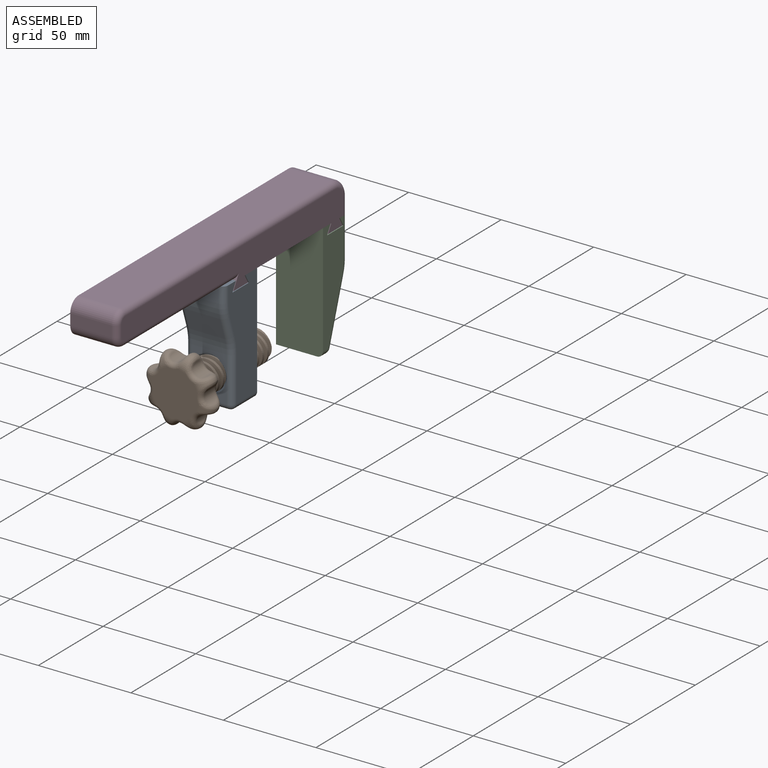
[diagram: assembled view]
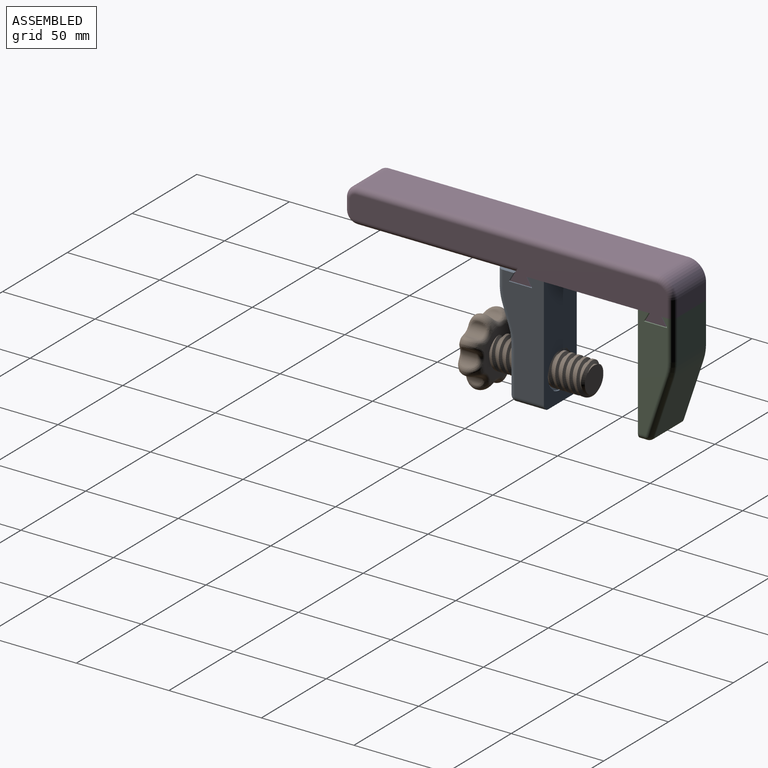
[diagram: assembled view, second angle]
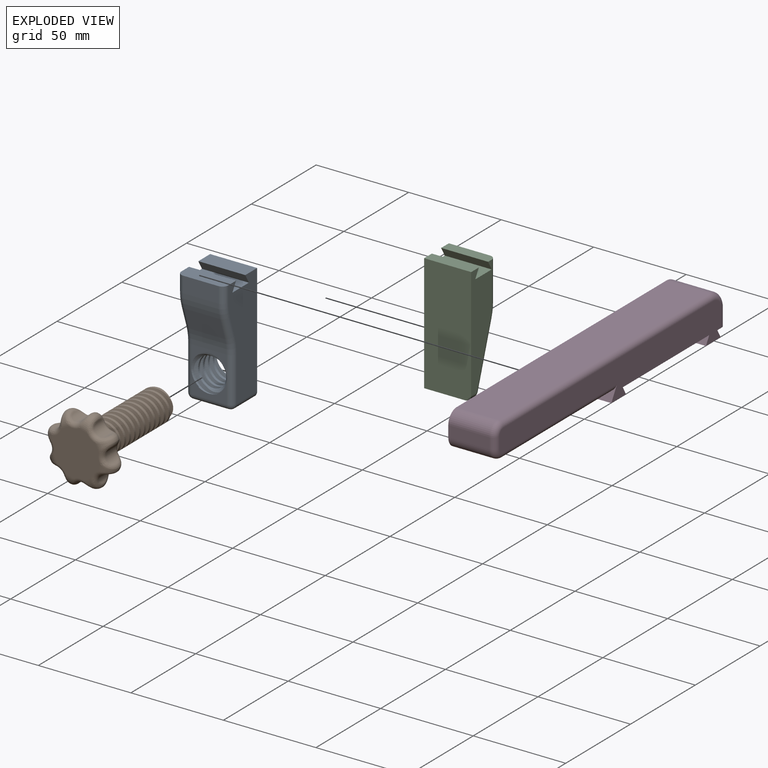
[diagram: exploded view]
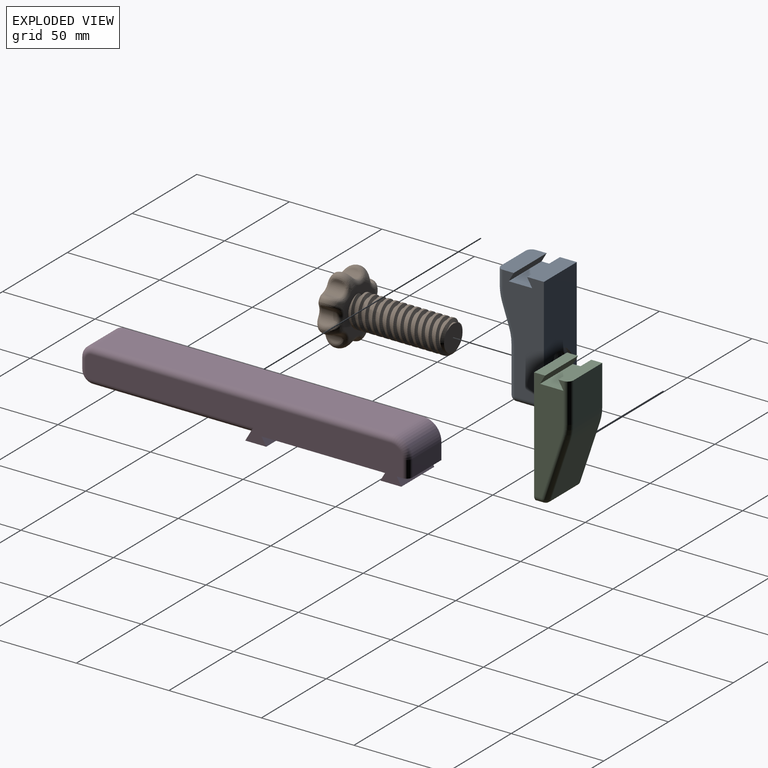
[diagram: exploded view, second angle]
ASSEMBLY  parts=4 mates=3
PART A: 42 faces, bbox 25.4x26.9x63.5 mm
  f0: plane 19.06x10.53mm, normal (0,-1,0), area 75.4mm2, adj f5,f16,f17,f18,f26,f27,f30,f37
  f1: plane 63.51x25.41mm, normal (0,1,0), area 1311.3mm2, adj f8,f9,f14,f15,f16,f17,f18,f19
  f2: plane 19.05x8.58mm, normal (0,-1,0), area 163.4mm2, adj f3,f13,f34,f41
  f3: cylinder r=25.4mm len=19.05mm, axis (-1,0,0), area 155.7mm2, adj f2,f4,f33,f40
  f4: plane 19.05x11.23mm, normal (0,-0.95,-0.32), area 225.5mm2, adj f3,f5,f32,f39
  f5: cylinder r=25.4mm len=19.05mm, axis (-1,0,0), area 155.7mm2, adj f0,f4,f31,f38
  f6: plane 19.06x11.47mm, normal (0,-1,0), area 93.4mm2, adj f7,f19,f20,f21,f26,f27,f30,f37
  f7: cylinder r=3.17mm len=19.05mm, axis (-1,0,0), area 95mm2, adj f6,f8,f29,f36
  f8: plane 19.05x15.88mm, normal (0,0,-1), area 302.4mm2, adj f1,f7,f28,f35
  f9: plane 25.4x9.1mm, normal (0,0,1), area 231.1mm2, adj f1,f10,f14,f15
  f10: plane 25.4x4.76mm, normal (0,-0.87,-0.5), area 139.7mm2, adj f9,f11,f14,f15
  f11: plane 25.4x12.7mm, normal (0,0,1), area 322.6mm2, adj f10,f12,f14,f15
  f12: plane 25.4x4.76mm, normal (0,0.87,-0.5), area 139.7mm2, adj f11,f13,f14,f15
  f13: plane 25.4x9.1mm, normal (0,0,1), area 226.8mm2, adj f2,f12,f14,f15,f34,f41
  f14: plane 60.33x22.23mm, normal (1,0,0), area 1048.6mm2, adj f1,f9,f10,f11,f12,f13,f35,f37
  f15: plane 60.33x22.23mm, normal (-1,0,0), area 1048.6mm2, adj f1,f9,f10,f11,f12,f13,f28,f30
  f16: bspline ~20.51x19.84mm, area 262mm2, adj f0,f1,f17,f23,f24,f26
  f17: cylinder r=9.92mm len=19.84mm, axis (0,-1,0), area 216.6mm2, adj f0,f1,f16,f18
  f18: bspline ~20.51x19.84mm, area 261.7mm2, adj f0,f1,f17,f22,f25,f27
  f19: bspline ~20.51x19.84mm, area 262mm2, adj f1,f6,f20,f22,f25,f27
  f20: cylinder r=9.92mm len=19.84mm, axis (0,-1,0), area 216.6mm2, adj f1,f6,f19,f21
  f21: bspline ~20.51x19.84mm, area 261.7mm2, adj f1,f6,f20,f23,f24,f26
  f22: cylinder r=8.02mm len=16.03mm, axis (0,1,0), area 146.1mm2, adj f18,f19,f25,f27
  f23: cylinder r=8.02mm len=16.03mm, axis (0,1,0), area 146.1mm2, adj f16,f21,f24,f26
  f24: cone r=8.02mm half-angle=45deg, axis (0,1,0), area 30mm2, adj f1,f16,f21,f23
  f25: cone r=8.02mm half-angle=45deg, axis (0,1,0), area 30mm2, adj f1,f18,f19,f22
  f26: cone r=9.6mm half-angle=45deg, axis (0,-1,0), area 30mm2, adj f0,f6,f16,f21,f23,f37
  f27: cone r=9.6mm half-angle=45deg, axis (0,-1,0), area 30mm2, adj f0,f6,f18,f19,f22,f30
  f28: cylinder r=3.17mm len=15.88mm, axis (0,1,0), area 79.2mm2, adj f1,f8,f15,f29
  f29: sphere r=3.17mm, area 15.8mm2, adj f7,f28,f30
  f30: cylinder r=3.17mm len=24.45mm, axis (0,0,-1), area 122mm2, adj f0,f6,f15,f27,f29,f31
  f31: torus R=28.57mm, axis (1,0,0), area 42.6mm2, adj f5,f15,f30,f32
  f32: cylinder r=3.17mm len=12.23mm, axis (0,0.32,-0.95), area 59mm2, adj f4,f15,f31,f33
  f33: torus R=22.23mm, axis (1,0,0), area 38.9mm2, adj f3,f15,f32,f34
  f34: cylinder r=3.17mm len=8.58mm, axis (0,0,-1), area 42.8mm2, adj f2,f13,f15,f33
  f35: cylinder r=3.17mm len=15.88mm, axis (0,-1,0), area 79.2mm2, adj f1,f8,f14,f36
  f36: sphere r=3.17mm, area 15.8mm2, adj f7,f35,f37
  f37: cylinder r=3.17mm len=24.45mm, axis (0,0,1), area 122mm2, adj f0,f6,f14,f26,f36,f38
  f38: torus R=28.57mm, axis (1,0,0), area 42.6mm2, adj f5,f14,f37,f39
  f39: cylinder r=3.17mm len=12.23mm, axis (0,-0.32,0.95), area 59mm2, adj f4,f14,f38,f40
  f40: torus R=22.23mm, axis (1,0,0), area 38.9mm2, adj f3,f14,f39,f41
  f41: cylinder r=3.17mm len=8.58mm, axis (0,0,1), area 42.8mm2, adj f2,f13,f14,f40
PART B: 61 faces, bbox 38.1x64.7x38.1 mm
  f0: torus R=12.7mm, axis (0,1,0), area 30mm2, adj f18,f20,f30,f35
  f1: torus R=12.7mm, axis (0,1,0), area 30mm2, adj f18,f20,f34,f39
  f2: torus R=12.7mm, axis (0,1,0), area 30mm2, adj f18,f20,f38,f43
  f3: torus R=12.7mm, axis (0,1,0), area 30mm2, adj f18,f20,f42,f46
  f4: torus R=12.7mm, axis (0,1,0), area 30mm2, adj f18,f20,f31,f59
  f5: torus R=12.7mm, axis (0,1,0), area 30mm2, adj f18,f20,f47,f50
  f6: torus R=12.7mm, axis (0,1,0), area 30mm2, adj f18,f20,f51,f54
  f7: bspline ~52.9x17.46mm, area 644.8mm2, adj f8,f14,f15,f17,f18
  f8: cylinder r=8.73mm len=49.69mm, axis (0,1,0), area 433.6mm2, adj f7,f9,f17,f18
  f9: bspline ~52.9x17.46mm, area 644.5mm2, adj f8,f13,f15,f17,f18
  f10: bspline ~52.9x17.46mm, area 644.8mm2, adj f11,f13,f15,f16,f18
  f11: cylinder r=8.73mm len=49.69mm, axis (0,1,0), area 433.6mm2, adj f10,f12,f16,f18
  f12: bspline ~52.9x17.46mm, area 644.5mm2, adj f11,f14,f15,f16,f18
  f13: cylinder r=6.83mm len=50.8mm, axis (0,-1,0), area 478.9mm2, adj f9,f10,f15,f18
  f14: cylinder r=6.83mm len=50.8mm, axis (0,-1,0), area 478.9mm2, adj f7,f12,f15,f18
  f15: plane 14.29x14.18mm, normal (0,1,0), area 154.9mm2, adj f7,f9,f10,f12,f13,f14,f16,f17
  f16: cone r=7.14mm half-angle=55deg, axis (0,-1,0), area 22.8mm2, adj f10,f11,f12,f15
  f17: cone r=7.14mm half-angle=55deg, axis (0,-1,0), area 22.8mm2, adj f7,f8,f9,f15
  f18: plane 25.02x25.02mm, normal (0,1,0), area 291.7mm2, adj f0,f1,f2,f3,f4,f5,f6,f7
  f19: torus R=12.7mm, axis (0,1,0), area 30mm2, adj f18,f20,f55,f58
  f20: plane 24.84x24.84mm, normal (0,-1,0), area 484.1mm2, adj f0,f1,f2,f3,f4,f5,f6,f19
  f21: cylinder r=4.76mm len=8.25mm, axis (0,-1,0), area 69.7mm2, adj f57,f58,f59,f60
  f22: cylinder r=4.76mm len=7.94mm, axis (0,-1,0), area 69.7mm2, adj f53,f54,f55,f56
  f23: cylinder r=4.76mm len=8.25mm, axis (0,-1,0), area 69.7mm2, adj f49,f50,f51,f52
  f24: cylinder r=4.76mm len=7.94mm, axis (0,-1,0), area 69.7mm2, adj f45,f46,f47,f48
  f25: cylinder r=4.76mm len=8.25mm, axis (0,-1,0), area 69.7mm2, adj f41,f42,f43,f44
  f26: cylinder r=4.76mm len=7.94mm, axis (0,-1,0), area 69.7mm2, adj f37,f38,f39,f40
  f27: cylinder r=4.76mm len=8.26mm, axis (0,-1,0), area 69.7mm2, adj f33,f34,f35,f36
  f28: cylinder r=4.76mm len=7.94mm, axis (0,-1,0), area 69.7mm2, adj f29,f30,f31,f32
  f29: torus R=7.14mm, axis (0,1,0), area 16mm2, adj f20,f28,f30,f31
  f30: bspline ~12.92x7.54mm, area 54.9mm2, adj f0,f28,f29,f32
  f31: bspline ~12.88x7.4mm, area 54.9mm2, adj f4,f28,f29,f32
  f32: torus R=7.14mm, axis (0,1,0), area 16mm2, adj f18,f28,f30,f31
  f33: torus R=7.14mm, axis (0,1,0), area 16mm2, adj f20,f27,f34,f35
  f34: bspline ~12.7x5.43mm, area 55mm2, adj f1,f27,f33,f36
  f35: bspline ~12.9x6.37mm, area 54.9mm2, adj f0,f27,f33,f36
  f36: torus R=7.14mm, axis (0,1,0), area 16mm2, adj f18,f27,f34,f35
  f37: torus R=7.14mm, axis (0,1,0), area 16mm2, adj f20,f26,f38,f39
  f38: bspline ~12.7x6.85mm, area 55mm2, adj f2,f26,f37,f40
  f39: bspline ~12.9x7.45mm, area 54.9mm2, adj f1,f26,f37,f40
  f40: torus R=7.14mm, axis (0,1,0), area 16mm2, adj f18,f26,f38,f39
  f41: torus R=7.14mm, axis (0,1,0), area 16mm2, adj f20,f25,f42,f43
  f42: bspline ~12.7x5.43mm, area 54.9mm2, adj f3,f25,f41,f44
  f43: bspline ~12.93x6.46mm, area 55mm2, adj f2,f25,f41,f44
  f44: torus R=7.14mm, axis (0,1,0), area 16mm2, adj f18,f25,f42,f43
  f45: torus R=7.14mm, axis (0,1,0), area 16mm2, adj f18,f24,f46,f47
  f46: bspline ~12.7x6.85mm, area 54.9mm2, adj f3,f24,f45,f48
  f47: bspline ~12.88x7.5mm, area 54.9mm2, adj f5,f24,f45,f48
  f48: torus R=7.14mm, axis (0,1,0), area 16mm2, adj f20,f24,f46,f47
  f49: torus R=7.14mm, axis (0,1,0), area 16mm2, adj f18,f23,f50,f51
  f50: bspline ~12.7x5.43mm, area 55mm2, adj f5,f23,f49,f52
  f51: bspline ~12.9x6.35mm, area 54.9mm2, adj f6,f23,f49,f52
  f52: torus R=7.14mm, axis (0,1,0), area 16mm2, adj f20,f23,f50,f51
  f53: torus R=7.14mm, axis (0,1,0), area 16mm2, adj f18,f22,f54,f55
  f54: bspline ~12.7x6.85mm, area 54.9mm2, adj f6,f22,f53,f56
  f55: bspline ~12.88x7.5mm, area 54.9mm2, adj f19,f22,f53,f56
  f56: torus R=7.14mm, axis (0,1,0), area 16mm2, adj f20,f22,f54,f55
  f57: torus R=7.14mm, axis (0,1,0), area 16mm2, adj f18,f21,f58,f59
  f58: bspline ~12.85x6.29mm, area 54.9mm2, adj f19,f21,f57,f60
  f59: bspline ~13.05x6.53mm, area 54.9mm2, adj f4,f21,f57,f60
  f60: torus R=7.14mm, axis (0,1,0), area 16mm2, adj f20,f21,f58,f59
PART C: 19 faces, bbox 25.4x19.4x63.5 mm
  f0: plane 60.33x15.88mm, normal (1,0,0), area 693.7mm2, adj f1,f2,f3,f11,f14,f15,f16,f18
  f1: plane 25.4x4.76mm, normal (0,0.87,-0.5), area 139.7mm2, adj f0,f2,f11,f13
  f2: plane 25.4x5.92mm, normal (0,0,1), area 150.5mm2, adj f0,f1,f3,f13
  f3: plane 63.5x25.4mm, normal (0,-1,0), area 1610.7mm2, adj f0,f2,f4,f13,f18
  f4: plane 22.23x4.06mm, normal (0,0,-1), area 90.3mm2, adj f3,f5,f13,f18
  f5: cylinder r=3.17mm len=22.23mm, axis (-1,0,0), area 88.1mm2, adj f4,f6,f13,f17
  f6: plane 32.02x22.23mm, normal (0,0.95,-0.32), area 750.1mm2, adj f5,f7,f13,f16
  f7: cylinder r=25.4mm len=22.23mm, axis (-1,0,0), area 181.6mm2, adj f6,f8,f13,f15
  f8: plane 22.23x21.28mm, normal (0,1,0), area 472.9mm2, adj f7,f9,f13,f14
  f9: plane 25.4x5.92mm, normal (0,0,1), area 148.3mm2, adj f8,f10,f12,f13,f14
  f10: plane 25.4x4.76mm, normal (0,-0.87,-0.5), area 139.7mm2, adj f9,f11,f12,f13
  f11: plane 25.4x12.7mm, normal (0,0,1), area 322.6mm2, adj f0,f1,f10,f13
  f12: plane 4.76x2.75mm, normal (1,0,0), area 6.5mm2, adj f9,f10,f14
  f13: plane 63.5x19.05mm, normal (-1,0,0), area 918.5mm2, adj f1,f2,f3,f4,f5,f6,f7,f8
  f14: cylinder r=3.17mm len=21.28mm, axis (0,0,-1), area 106.1mm2, adj f0,f8,f9,f12,f15
  f15: torus R=22.23mm, axis (1,0,0), area 38.9mm2, adj f0,f7,f14,f16
  f16: cylinder r=3.17mm len=33.02mm, axis (0,-0.32,-0.95), area 168.3mm2, adj f0,f6,f15,f17
  f17: sphere r=3.17mm, area 12.6mm2, adj f5,f16,f18
  f18: cylinder r=3.17mm len=4.06mm, axis (0,-1,0), area 20.3mm2, adj f0,f3,f4,f17
PART D: 29 faces, bbox 25.4x179.1x23.8 mm
  f0: plane 22.23x5.95mm, normal (0,1,0), area 132.3mm2, adj f1,f3,f20,f21
  f1: plane 152.4x22.23mm, normal (0,0,-1), area 3387.1mm2, adj f0,f2,f20,f21
  f2: plane 22.23x5.95mm, normal (0,-1,0), area 132.3mm2, adj f1,f3,f20,f21
  f3: plane 152.4x22.23mm, normal (0,0,1), area 3387.1mm2, adj f0,f2,f20,f21
  f4: plane 66.74x25.4mm, normal (0,0,-1), area 1695.2mm2, adj f5,f18,f19,f20
  f5: plane 25.4x4.37mm, normal (0,-0.87,0.5), area 128mm2, adj f4,f6,f19,f20
  f6: plane 25.4x11.33mm, normal (0,0,-1), area 287.7mm2, adj f5,f7,f19,f20
  f7: plane 25.4x4.37mm, normal (0,0.87,0.5), area 128mm2, adj f6,f8,f19,f20
  f8: plane 25.4x6.38mm, normal (0,0,-1), area 160mm2, adj f7,f9,f19,f20,f28
  f9: plane 22.23x9.13mm, normal (0,1,0), area 202.9mm2, adj f8,f10,f20,f28
  f10: cylinder r=9.53mm len=22.23mm, axis (-1,0,0), area 332.5mm2, adj f9,f11,f20,f27
  f11: plane 161.93x22.23mm, normal (0,0,1), area 3598.8mm2, adj f10,f12,f20,f26
  f12: cylinder r=6.35mm len=22.23mm, axis (-1,0,0), area 221.7mm2, adj f11,f13,f20,f25
  f13: plane 22.23x5.95mm, normal (0,-1,0), area 132.3mm2, adj f12,f14,f20,f24
  f14: cylinder r=6.35mm len=22.23mm, axis (-1,0,0), area 221.7mm2, adj f13,f15,f20,f23
  f15: plane 85.76x22.23mm, normal (0,0,-1), area 1906mm2, adj f14,f16,f20,f22
  f16: plane 25.4x7.54mm, normal (0,-0.87,0.5), area 130.5mm2, adj f15,f17,f19,f20,f22
  f17: plane 25.4x11.33mm, normal (0,0,-1), area 287.7mm2, adj f16,f18,f19,f20
  f18: plane 25.4x4.37mm, normal (0,0.87,0.5), area 128mm2, adj f4,f17,f19,f20
  f19: plane 171.45x19.84mm, normal (1,0,0), area 2432.3mm2, adj f4,f5,f6,f7,f8,f16,f17,f18
  f20: plane 177.8x23.02mm, normal (-1,0,0), area 2449.4mm2, adj f0,f1,f2,f3,f4,f5,f6,f7
  f21: plane 152.4x5.95mm, normal (-1,0,0), area 907.3mm2, adj f0,f1,f2,f3
  f22: cylinder r=3.17mm len=87.59mm, axis (0,-1,0), area 431mm2, adj f15,f16,f19,f23
  f23: torus R=3.17mm, axis (1,0,0), area 40.7mm2, adj f14,f19,f22,f24
  f24: cylinder r=3.17mm len=5.95mm, axis (0,0,1), area 29.7mm2, adj f13,f19,f23,f25
  f25: torus R=3.17mm, axis (1,0,0), area 40.7mm2, adj f12,f19,f24,f26
  f26: cylinder r=3.17mm len=161.93mm, axis (0,1,0), area 807.6mm2, adj f11,f19,f25,f27
  f27: torus R=6.35mm, axis (1,0,0), area 65.6mm2, adj f10,f19,f26,f28
  f28: cylinder r=3.17mm len=9.13mm, axis (0,0,-1), area 45.5mm2, adj f8,f9,f19,f27
PLACE A at identity
PLACE B rot(axis=(0,1,0),39.6deg) t=(12.7,-7.19,-56.95)mm
PLACE C at identity
PLACE D at identity
MATE cylindrical B.f0 <-> A.f17  axis (0,1,0) through (12.7,43.61,-56.95)mm
MATE fastened C.f13 <-> D.f20  axis (-1,0,0) through (0,85.72,-14.09)mm
MATE fastened D.f20 <-> A.f15  axis (-1,0,0) through (0,12.7,-13.69)mm
